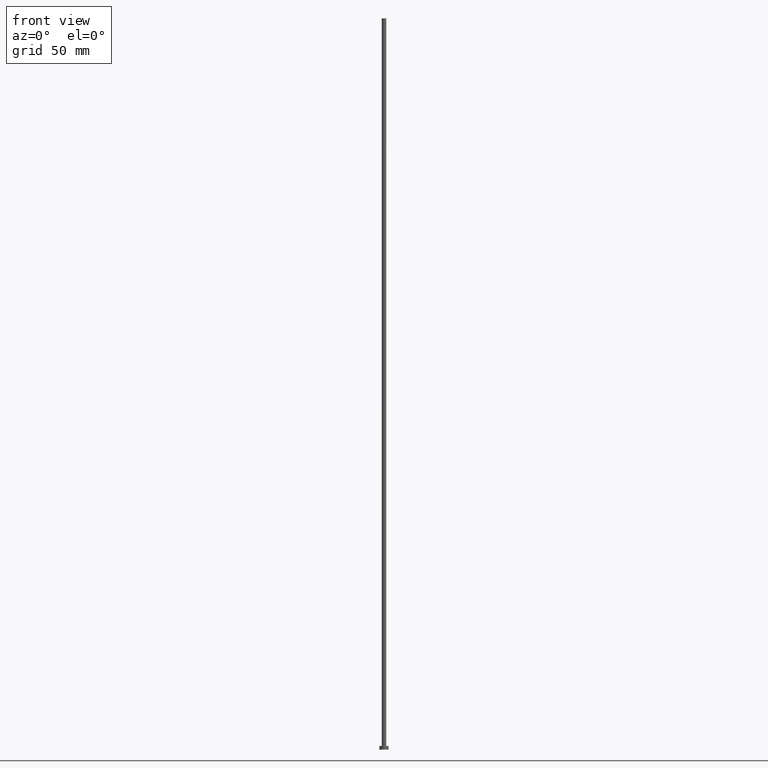
[diagram: clean part render]
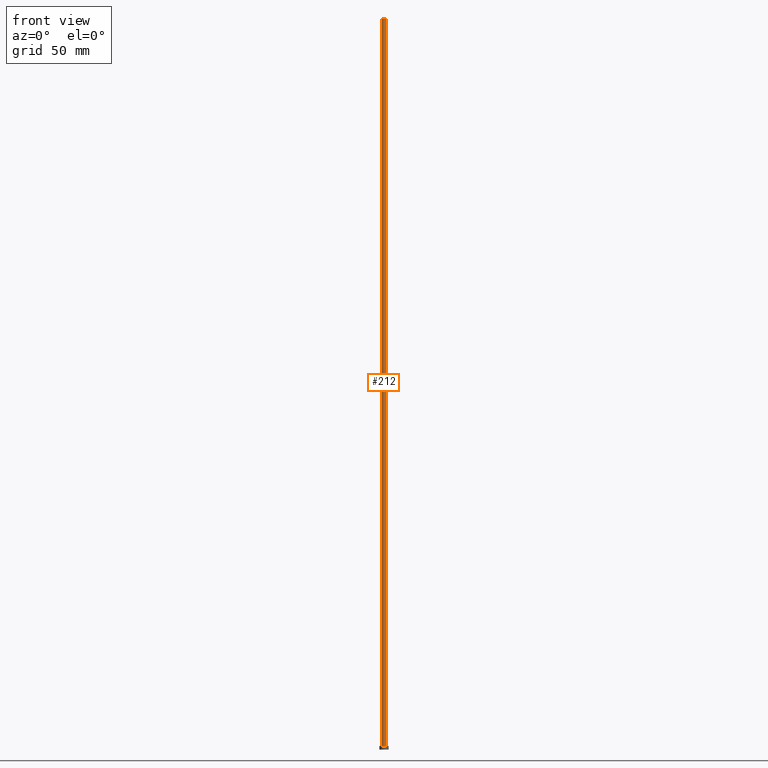
[diagram: same view with one face highlighted and labeled with its STEP entity id]
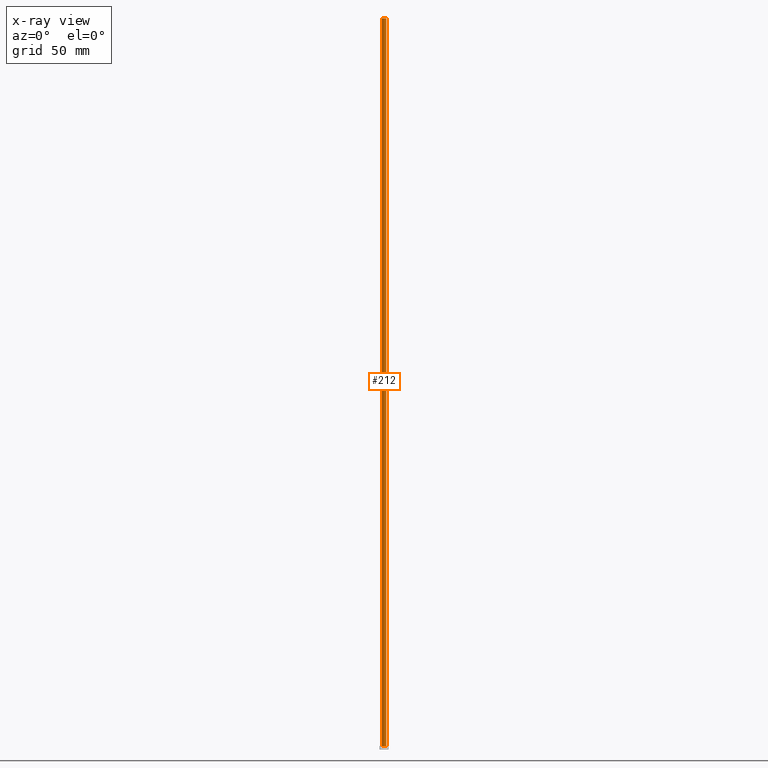
[diagram: x-ray of the same camera — body ghosted, the highlighted face saturated]
A machine part, front view. The second image highlights one B-rep face of the part: STEP entity #212.
The next image is the same camera in x-ray: the body ghosted, the highlighted face saturated — about 0% of this face is hidden behind the body in this view.
In plain terms, the highlighted cylindrical surface (edge-blend (fillet) strip) has radius 1.25 mm, axis along (-0, -0, -1).
Its self-contained STEP definition (entity closure, byte-faithful):
#1 = ORIENTED_EDGE ( 'NONE', *, *, #165, .F. ) ;
#8 = CARTESIAN_POINT ( 'NONE',  ( 1.250000000000000000, 1.530808498934191571E-16, 400.0000000000000000 ) ) ;
#18 = EDGE_CURVE ( 'NONE', #97, #223, #205, .T. ) ;
#20 = FACE_OUTER_BOUND ( 'NONE', #152, .T. ) ;
#25 = ORIENTED_EDGE ( 'NONE', *, *, #101, .T. ) ;
#36 = DIRECTION ( 'NONE',  ( -0.000000000000000000, -0.000000000000000000, -1.000000000000000000 ) ) ;
#39 = CYLINDRICAL_SURFACE ( 'NONE', #149, 1.250000000000000000 ) ;
#50 = CARTESIAN_POINT ( 'NONE',  ( 0.000000000000000000, 0.000000000000000000, 400.0000000000000000 ) ) ;
#51 = CARTESIAN_POINT ( 'NONE',  ( 1.250000000000000000, 1.530808498934191571E-16, 2.000000000000000000 ) ) ;
#66 = VERTEX_POINT ( 'NONE', #123 ) ;
#68 = LINE ( 'NONE', #8, #124 ) ;
#69 = ORIENTED_EDGE ( 'NONE', *, *, #18, .T. ) ;
#74 = VERTEX_POINT ( 'NONE', #102 ) ;
#82 = AXIS2_PLACEMENT_3D ( 'NONE', #187, #167, #168 ) ;
#83 = CARTESIAN_POINT ( 'NONE',  ( 0.000000000000000000, 0.000000000000000000, 400.0000000000000000 ) ) ;
#96 = EDGE_CURVE ( 'NONE', #74, #66, #107, .T. ) ;
#97 = VERTEX_POINT ( 'NONE', #250 ) ;
#101 = EDGE_CURVE ( 'NONE', #74, #97, #106, .T. ) ;
#102 = CARTESIAN_POINT ( 'NONE',  ( -1.250000000000000000, 0.000000000000000000, 400.0000000000000000 ) ) ;
#106 = LINE ( 'NONE', #127, #150 ) ;
#107 = CIRCLE ( 'NONE', #243, 1.250000000000000000 ) ;
#123 = CARTESIAN_POINT ( 'NONE',  ( 1.250000000000000000, 1.530808498934191571E-16, 400.0000000000000000 ) ) ;
#124 = VECTOR ( 'NONE', #240, 1000.000000000000000 ) ;
#127 = CARTESIAN_POINT ( 'NONE',  ( -1.250000000000000000, 0.000000000000000000, 400.0000000000000000 ) ) ;
#149 = AXIS2_PLACEMENT_3D ( 'NONE', #50, #36, #199 ) ;
#150 = VECTOR ( 'NONE', #190, 1000.000000000000000 ) ;
#152 = EDGE_LOOP ( 'NONE', ( #1, #178, #25, #69 ) ) ;
#165 = EDGE_CURVE ( 'NONE', #66, #223, #68, .T. ) ;
#167 = DIRECTION ( 'NONE',  ( 0.000000000000000000, 0.000000000000000000, 1.000000000000000000 ) ) ;
#168 = DIRECTION ( 'NONE',  ( 1.000000000000000000, 0.000000000000000000, 0.000000000000000000 ) ) ;
#178 = ORIENTED_EDGE ( 'NONE', *, *, #96, .F. ) ;
#187 = CARTESIAN_POINT ( 'NONE',  ( 0.000000000000000000, 0.000000000000000000, 2.000000000000000000 ) ) ;
#190 = DIRECTION ( 'NONE',  ( -0.000000000000000000, -0.000000000000000000, -1.000000000000000000 ) ) ;
#199 = DIRECTION ( 'NONE',  ( -1.000000000000000000, 0.000000000000000000, 0.000000000000000000 ) ) ;
#205 = CIRCLE ( 'NONE', #82, 1.250000000000000000 ) ;
#211 = DIRECTION ( 'NONE',  ( 1.000000000000000000, 0.000000000000000000, 0.000000000000000000 ) ) ;
#212 = ADVANCED_FACE ( 'NONE', ( #20 ), #39, .T. ) ;
#223 = VERTEX_POINT ( 'NONE', #51 ) ;
#236 = DIRECTION ( 'NONE',  ( 0.000000000000000000, 0.000000000000000000, 1.000000000000000000 ) ) ;
#240 = DIRECTION ( 'NONE',  ( -0.000000000000000000, -0.000000000000000000, -1.000000000000000000 ) ) ;
#243 = AXIS2_PLACEMENT_3D ( 'NONE', #83, #236, #211 ) ;
#250 = CARTESIAN_POINT ( 'NONE',  ( -1.250000000000000000, 0.000000000000000000, 2.000000000000000000 ) ) ;